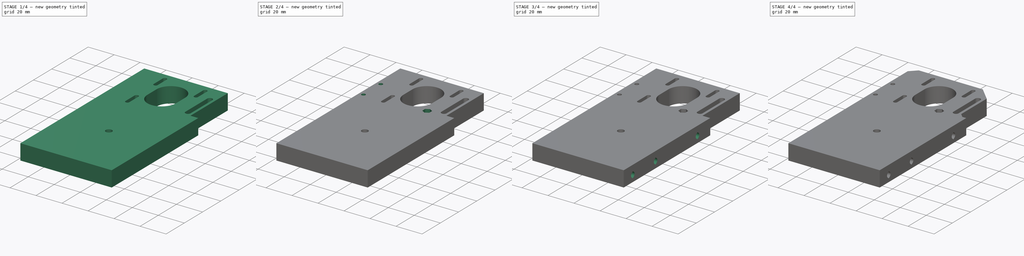
[diagram: build sequence overview — one tinted view per stage of 4, left to right]
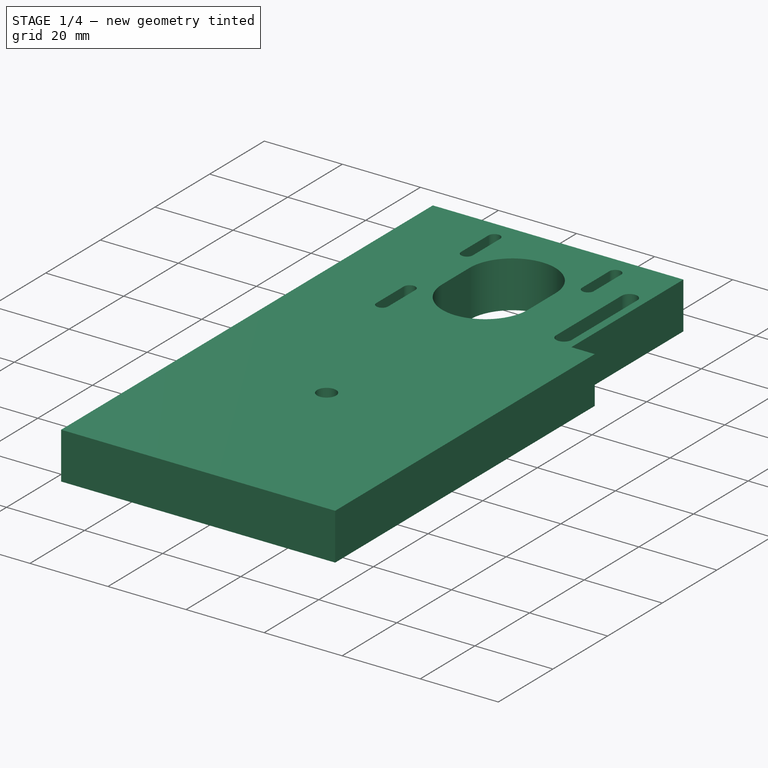
[diagram: stage 1 of 4 — iso view after this stage's code; geometry added in this stage tinted green]
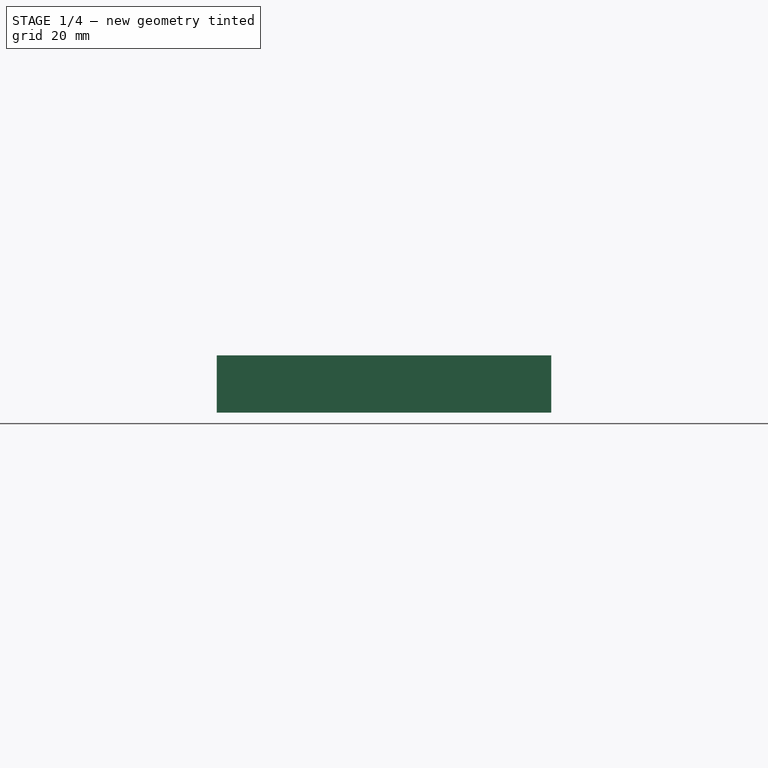
[diagram: stage 1 of 4 — front view after this stage's code; geometry added in this stage tinted green]
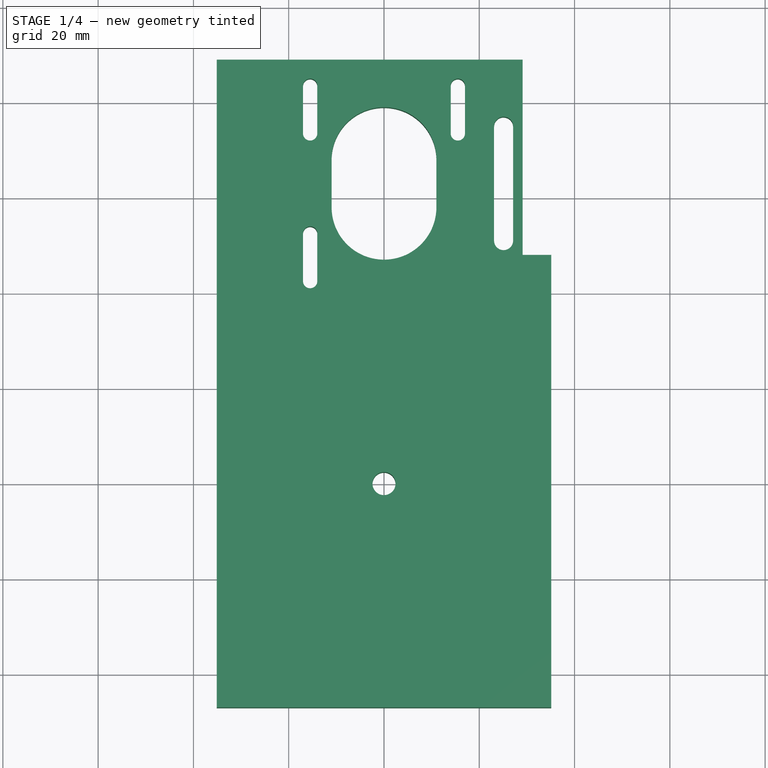
[diagram: stage 1 of 4 — top view after this stage's code; geometry added in this stage tinted green]
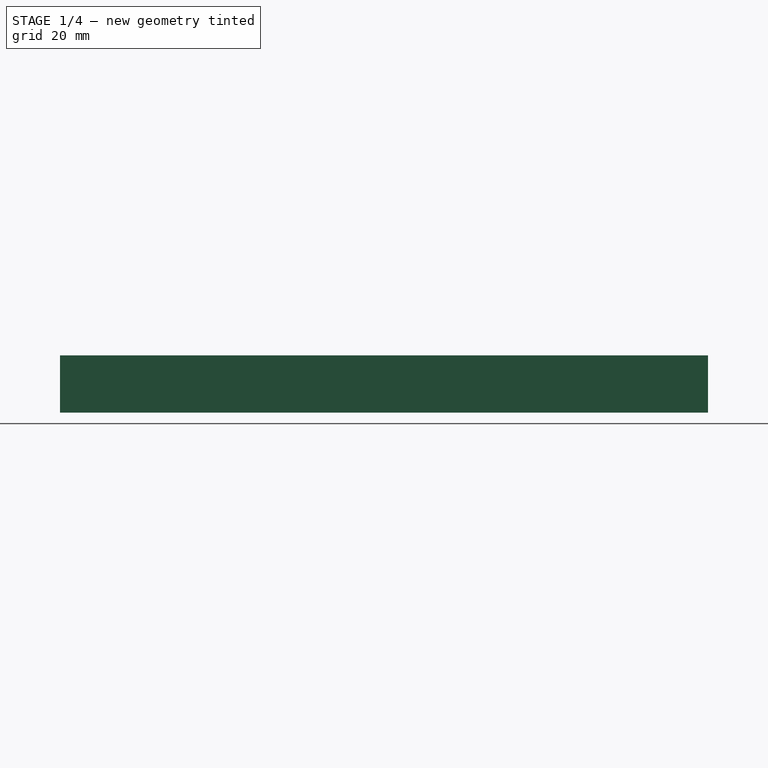
[diagram: stage 1 of 4 — right view after this stage's code; geometry added in this stage tinted green]
FCSTD DOCUMENT  (FreeCAD 0.20R29410 (Git))
Label: #5_MotorsBase
License: All rights reserved
LicenseURL: http://en.wikipedia.org/wiki/All_rights_reserved
objects: Sketcher::SketchObject×7, PartDesign::Pocket×6, PartDesign::Chamfer×3, PartDesign::LinearPattern×2, PartDesign::Pad×1, PartDesign::Body×1
note: 30 computed .brp shape members not serialized (recipe doc carries the construction recipe); baked Part::Feature solids carry a one-line shape summary decoded from their .brp

FEATURE [Sketcher::SketchObject] Sketch
  FullyConstrained = true
  MapMode = 5
  Support = -> [XY_Plane]
  sketch-geometry (7):
    g0: Circle CenterX=0 CenterY=0 CenterZ=0 NormalX=0 NormalY=0 NormalZ=1 AngleXU=0 Radius=2.425
    g1: LineSegment StartX=-35.1 StartY=-47 StartZ=0 EndX=35.1 EndY=-47 EndZ=0
    g2: LineSegment StartX=-35.1 StartY=-47 StartZ=0 EndX=-35.1 EndY=89 EndZ=0
    g3: LineSegment StartX=35.1 StartY=-47 StartZ=0 EndX=35.1 EndY=48 EndZ=0
    g4: LineSegment StartX=35.1 StartY=48 StartZ=0 EndX=29.1 EndY=48 EndZ=0
    g5: LineSegment StartX=29.1 StartY=48 StartZ=0 EndX=29.1 EndY=89 EndZ=0
    g6: LineSegment StartX=29.1 StartY=89 StartZ=0 EndX=-35.1 EndY=89 EndZ=0
  constraints (20):
    c: Coincident(g0,g-1)
    c: Diameter(g0) = 4.85
    c: Distance(g1) = 70.2
    c: Symmetric(g1,g1,g-2)
    c: Distance(g0,g1) = 47
    c: Coincident(g2,g1)
    c: Vertical(g2)
    c: Distance(g2) = 136
    c: Coincident(g3,g1)
    c: Vertical(g3)
    c: Distance(g3) = 95
    c: Coincident(g4,g3)
    c: Horizontal(g4)
    c: Distance(g4) = 6
    c: Coincident(g5,g4)
    c: Vertical(g5)
    c: Distance(g5) = 41
    c: Coincident(g6,g5)
    c: Horizontal(g6)
    c: PointOnObject(g6,g2)
FEATURE [PartDesign::Pad] Pad
  Direction = (0,0,1)
  Length = 12
  Length2 = 10
  Profile = -> Sketch
  ReferenceAxis = -> Sketch [N_Axis]
  Type = 0
FEATURE [Sketcher::SketchObject] Sketch001
  FullyConstrained = true
  MapMode = 5
  Placement = pos=(0,0,12) rot=(0,0,1;0rad)
  Support = -> [Pad]
  sketch-geometry (18):
    g0: ArcOfCircle CenterX=0 CenterY=68 CenterZ=0 NormalX=0 NormalY=0 NormalZ=1 AngleXU=0 Radius=11 StartAngle=1e-16 EndAngle=3.14159
    g1: ArcOfCircle CenterX=0 CenterY=58 CenterZ=0 NormalX=0 NormalY=0 NormalZ=1 AngleXU=0 Radius=11 StartAngle=3.14159 EndAngle=6.28319
    g2: LineSegment StartX=-11 StartY=68 StartZ=0 EndX=-11 EndY=58 EndZ=0
    g3: LineSegment StartX=11 StartY=58 StartZ=0 EndX=11 EndY=68 EndZ=0
    g4: ArcOfCircle CenterX=-15.5 CenterY=83.5 CenterZ=0 NormalX=0 NormalY=0 NormalZ=1 AngleXU=0 Radius=1.5 StartAngle=-9e-16 EndAngle=3.14159
    g5: ArcOfCircle CenterX=-15.5 CenterY=73.5 CenterZ=0 NormalX=0 NormalY=0 NormalZ=1 AngleXU=0 Radius=1.5 StartAngle=3.14159 EndAngle=6.28319
    g6: LineSegment StartX=-17 StartY=83.5 StartZ=0 EndX=-17 EndY=73.5 EndZ=0
    g7: LineSegment StartX=-14 StartY=73.5 StartZ=0 EndX=-14 EndY=83.5 EndZ=0
    g8: ArcOfCircle CenterX=-15.5 CenterY=52.5 CenterZ=0 NormalX=0 NormalY=0 NormalZ=1 AngleXU=0 Radius=1.5 StartAngle=-9e-16 EndAngle=3.14159
    g9: ArcOfCircle CenterX=-15.5 CenterY=42.5 CenterZ=0 NormalX=0 NormalY=0 NormalZ=1 AngleXU=0 Radius=1.5 StartAngle=3.14159 EndAngle=6.28319
    g10: LineSegment StartX=-17 StartY=52.5 StartZ=0 EndX=-17 EndY=42.5 EndZ=0
    g11: LineSegment StartX=-14 StartY=42.5 StartZ=0 EndX=-14 EndY=52.5 EndZ=0
    g12: ArcOfCircle CenterX=15.5 CenterY=83.5 CenterZ=0 NormalX=0 NormalY=0 NormalZ=1 AngleXU=0 Radius=1.5 StartAngle=4.1e-15 EndAngle=3.14159
    g13: ArcOfCircle CenterX=15.5 CenterY=73.5 CenterZ=0 NormalX=0 NormalY=0 NormalZ=1 AngleXU=0 Radius=1.5 StartAngle=3.14159 EndAngle=6.28319
    g14: LineSegment StartX=14 StartY=83.5 StartZ=0 EndX=14 EndY=73.5 EndZ=0
    g15: LineSegment StartX=17 StartY=73.5 StartZ=0 EndX=17 EndY=83.5 EndZ=0
    g16: LineSegment StartX=-15.5 StartY=42.5 StartZ=0 EndX=0 EndY=58 EndZ=0
    g17: LineSegment StartX=0 StartY=58 StartZ=0 EndX=-15.5 EndY=73.5 EndZ=0
  constraints (43):
    c: Tangent(g0,g2) = -1.5708
    c: Tangent(g2,g1) = -1.5708
    c: Tangent(g1,g3) = -1.5708
    c: Tangent(g3,g0) = -1.5708
    c: Equal(g0,g1)
    c: PointOnObject(g0,g-2)
    c: PointOnObject(g1,g-2)
    c: Diameter(g1) = 22
    c: Distance(g1,g0) = 10
    c: Distance(g1,g-1) = 58
    c: Tangent(g4,g6) = -1.5708
    c: Tangent(g6,g5) = -1.5708
    c: Tangent(g5,g7) = -1.5708
    c: Tangent(g7,g4) = -1.5708
    c: Equal(g4,g5)
    c: Vertical(g6)
    c: Tangent(g8,g10) = -1.5708
    c: Tangent(g10,g9) = -1.5708
    c: Tangent(g9,g11) = -1.5708
    c: Tangent(g11,g8) = -1.5708
    c: Equal(g8,g9)
    c: Vertical(g10)
    c: Tangent(g12,g14) = -1.5708
    c: Tangent(g14,g13) = -1.5708
    c: Tangent(g13,g15) = -1.5708
    c: Tangent(g15,g12) = -1.5708
    c: Equal(g12,g13)
    c: Vertical(g14)
    c: Diameter(g13) = 3
    c: Diameter(g9) = 3
    c: Diameter(g5) = 3
    c: Distance(g8,g9) = 10
    c: Distance(g4,g5) = 10
    c: Distance(g12,g13) = 10
    c: Symmetric(g4,g12,g-2)
    c: Distance(g4,g12) = 31
    c: Coincident(g16,g9)
    c: Coincident(g16,g1)
    c: Coincident(g17,g1)
    c: Coincident(g17,g5)
    c: Equal(g17,g16)
    c: DistanceX(g9,g13) = 31
    c: Distance(g8,g4) = 31
FEATURE [PartDesign::Pocket] Pocket
  BaseFeature = -> Pad
  Direction = (0,0,-1)
  Length = 20
  Length2 = 5
  Profile = -> Sketch001
  ReferenceAxis = -> Sketch001 [N_Axis]
  Type = 0
FEATURE [Sketcher::SketchObject] Sketch002
  ExternalGeometry = -> [Pocket]
  FullyConstrained = true
  MapMode = 5
  Placement = pos=(0,0,12) rot=(0,0,1;0rad)
  Support = -> [Pocket]
  sketch-geometry (4):
    g0: ArcOfCircle CenterX=25.1 CenterY=75 CenterZ=0 NormalX=0 NormalY=0 NormalZ=1 AngleXU=0 Radius=2 StartAngle=0 EndAngle=3.14159
    g1: ArcOfCircle CenterX=25.1 CenterY=51 CenterZ=0 NormalX=0 NormalY=0 NormalZ=1 AngleXU=0 Radius=2 StartAngle=3.14159 EndAngle=6.28319
    g2: LineSegment StartX=23.1 StartY=75 StartZ=0 EndX=23.1 EndY=51 EndZ=0
    g3: LineSegment StartX=27.1 StartY=51 StartZ=0 EndX=27.1 EndY=75 EndZ=0
  constraints (10):
    c: Tangent(g0,g2) = -1.5708
    c: Tangent(g2,g1) = -1.5708
    c: Tangent(g1,g3) = -1.5708
    c: Tangent(g3,g0) = -1.5708
    c: Equal(g0,g1)
    c: Vertical(g2)
    c: Diameter(g1) = 4
    c: DistanceY(g1,g0) = 24
    c: Distance(g0,g-3) = 2
    c: DistanceY(g0,g-3) = 14
FEATURE [PartDesign::Pocket] Pocket001
  BaseFeature = -> Pocket
  Direction = (0,0,-1)
  Length = 20
  Length2 = 5
  Profile = -> Sketch002
  ReferenceAxis = -> Sketch002 [N_Axis]
  Type = 0
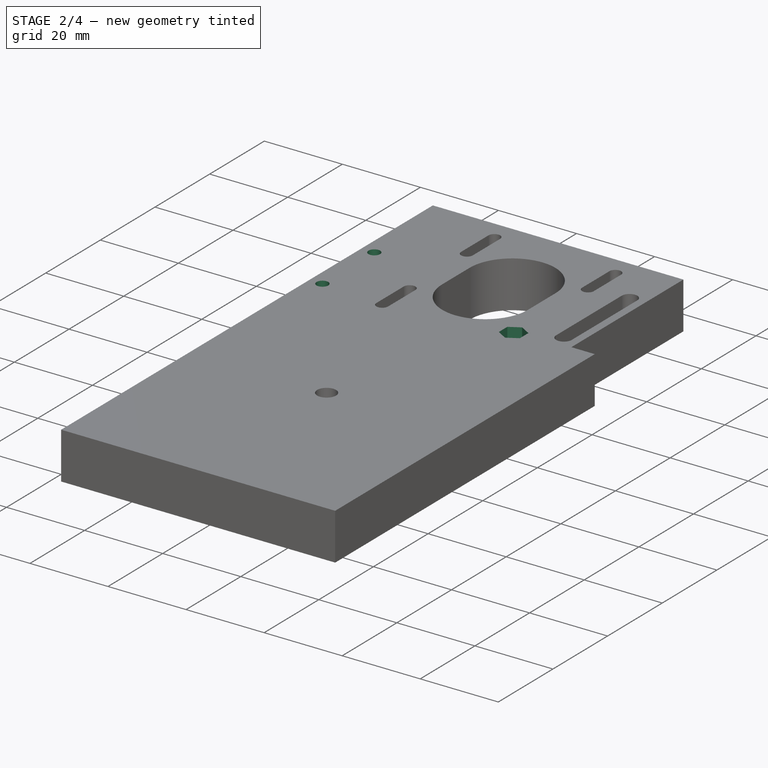
[diagram: stage 2 of 4 — iso view after this stage's code; geometry added in this stage tinted green]
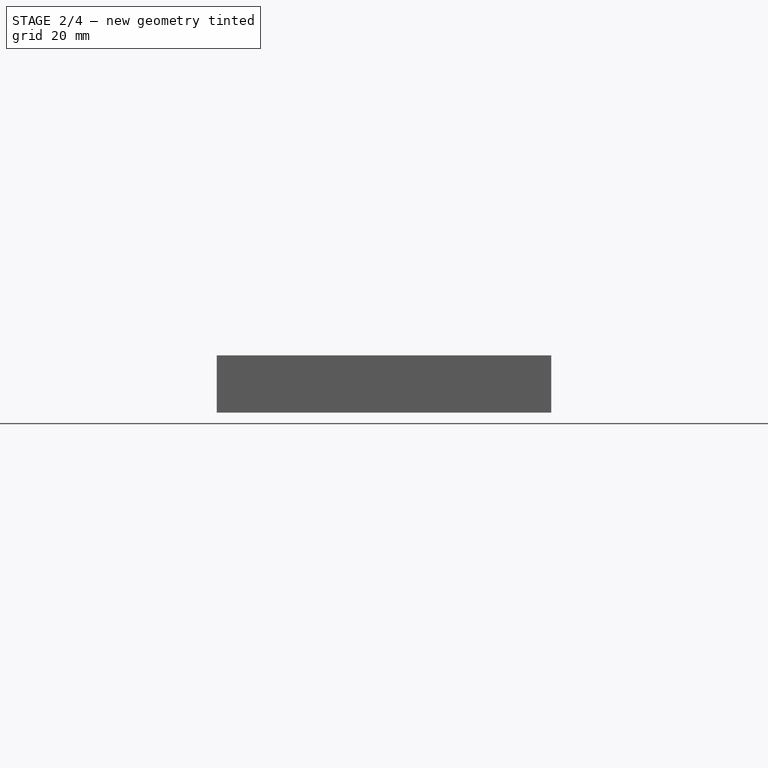
[diagram: stage 2 of 4 — front view after this stage's code; geometry added in this stage tinted green]
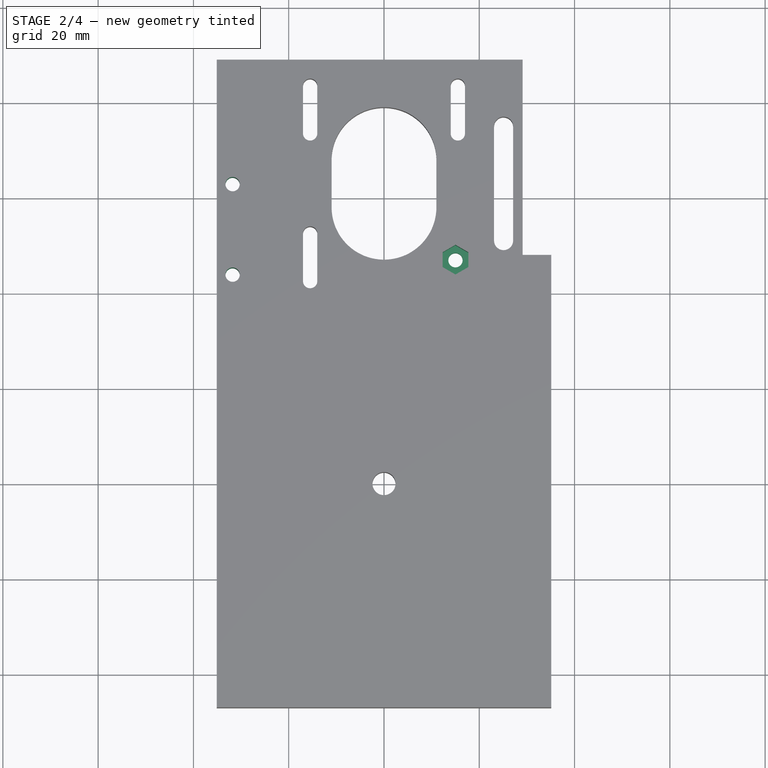
[diagram: stage 2 of 4 — top view after this stage's code; geometry added in this stage tinted green]
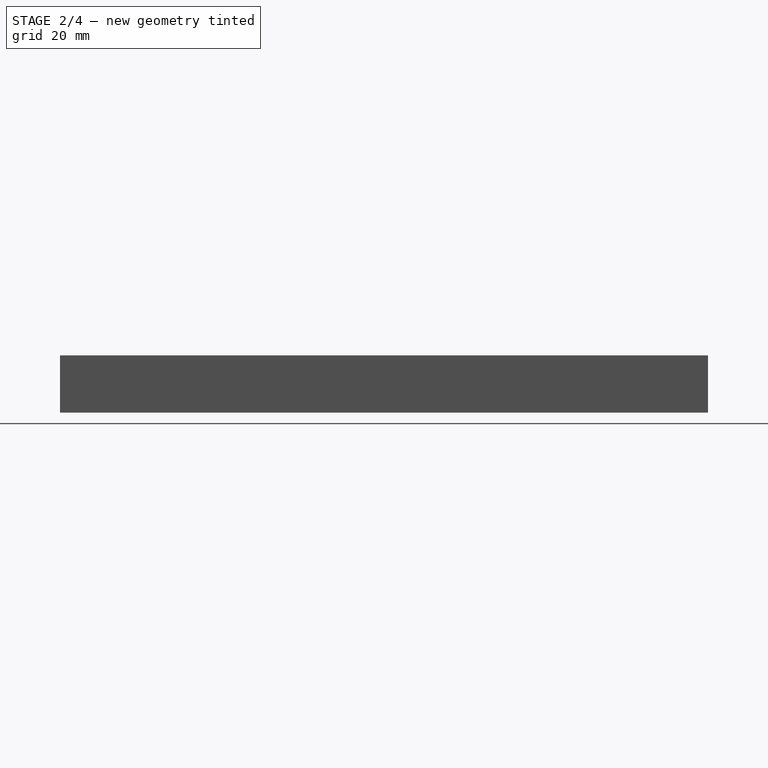
[diagram: stage 2 of 4 — right view after this stage's code; geometry added in this stage tinted green]
FEATURE [Sketcher::SketchObject] Sketch003
  ExternalGeometry = -> [Pocket001]
  FullyConstrained = true
  MapMode = 5
  Placement = pos=(0,0,12) rot=(0,0,1;0rad)
  Support = -> [Pocket001]
  sketch-geometry (2):
    g0: Circle CenterX=-31.78 CenterY=62.85 CenterZ=0 NormalX=0 NormalY=0 NormalZ=1 AngleXU=0 Radius=1.5
    g1: Circle CenterX=-31.78 CenterY=43.85 CenterZ=0 NormalX=0 NormalY=0 NormalZ=1 AngleXU=0 Radius=1.5
  constraints (6):
    c: Diameter(g1) = 3
    c: Diameter(g0) = 3
    c: DistanceY(g1,g0) = 19
    c: DistanceY(g0,g-3) = 26.15
    c: DistanceX(g-3,g0) = 3.32
    c: DistanceX(g-3,g1) = 3.32
FEATURE [PartDesign::Pocket] Pocket002
  BaseFeature = -> Pocket001
  Direction = (0,0,-1)
  Length = 20
  Length2 = 5
  Profile = -> Sketch003
  ReferenceAxis = -> Sketch003 [N_Axis]
  Type = 0
FEATURE [Sketcher::SketchObject] Sketch004
  ExternalGeometry = -> [Pocket002]
  FullyConstrained = true
  MapMode = 5
  Placement = pos=(0,0,12) rot=(0,0,1;0rad)
  Support = -> [Pocket002]
  sketch-geometry (1):
    g0: Circle CenterX=14.9991 CenterY=47.0047 CenterZ=0 NormalX=0 NormalY=0 NormalZ=1 AngleXU=0 Radius=1.5
  constraints (3):
    c: Diameter(g0) = 3
    c: Distance(g0,g-4) = 30.83
    c: Distance(g0,g-3) = 26.5
FEATURE [PartDesign::Pocket] Pocket003
  BaseFeature = -> Pocket002
  Direction = (0,0,-1)
  Length = 20
  Length2 = 5
  Profile = -> Sketch004
  ReferenceAxis = -> Sketch004 [N_Axis]
  Type = 0
FEATURE [Sketcher::SketchObject] Sketch005
  ExternalGeometry = -> [Pocket003]
  FullyConstrained = true
  MapMode = 5
  Placement = pos=(0,0,12) rot=(0,0,1;0rad)
  Support = -> [Pocket003]
  sketch-geometry (7):
    g0: LineSegment StartX=14.9991 StartY=43.887 StartZ=0 EndX=17.6991 EndY=45.4459 EndZ=0
    g1: LineSegment StartX=17.6991 StartY=45.4459 StartZ=0 EndX=17.6991 EndY=48.5636 EndZ=0
    g2: LineSegment StartX=17.6991 StartY=48.5636 StartZ=0 EndX=14.9991 EndY=50.1224 EndZ=0
    g3: LineSegment StartX=14.9991 StartY=50.1224 StartZ=0 EndX=12.2991 EndY=48.5636 EndZ=0
    g4: LineSegment StartX=12.2991 StartY=48.5636 StartZ=0 EndX=12.2991 EndY=45.4459 EndZ=0
    g5: LineSegment StartX=12.2991 StartY=45.4459 StartZ=0 EndX=14.9991 EndY=43.887 EndZ=0
    g6: Circle CenterX=14.9991 CenterY=47.0047 CenterZ=0 NormalX=0 NormalY=0 NormalZ=1 AngleXU=0 Radius=3.11769
  constraints (16):
    c: Coincident(g0,g1)
    c: Coincident(g1,g2)
    c: Coincident(g2,g3)
    c: Coincident(g3,g4)
    c: Coincident(g4,g5)
    c: Coincident(g5,g0)
    c: Equal(g0, g1-g5) x5
    c: PointOnObject(g0,g6)
    c: PointOnObject(g1,g6)
    c: PointOnObject(g2,g6)
    c: PointOnObject(g3,g6)
    c: PointOnObject(g4,g6)
    c: PointOnObject(g5,g6)
    c: Coincident(g6,g-3)
    c: Parallel(g1,g-2)
    c: DistanceX(g4,g0) = 5.4
FEATURE [PartDesign::Pocket] Pocket004
  BaseFeature = -> Pocket003
  Direction = (0,0,-1)
  Length = 7
  Length2 = 5
  Profile = -> Sketch005
  ReferenceAxis = -> Sketch005 [N_Axis]
  Type = 0
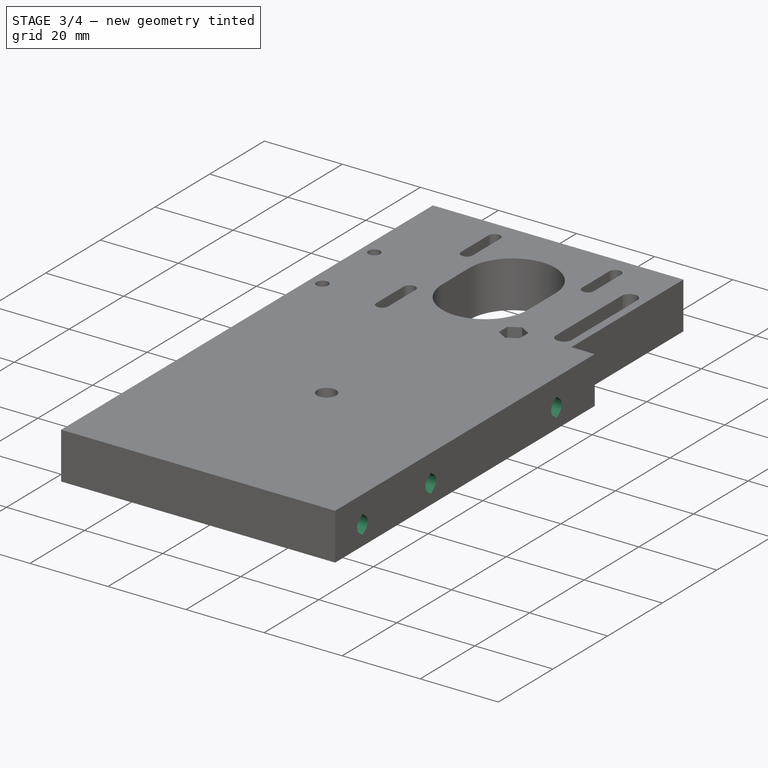
[diagram: stage 3 of 4 — iso view after this stage's code; geometry added in this stage tinted green]
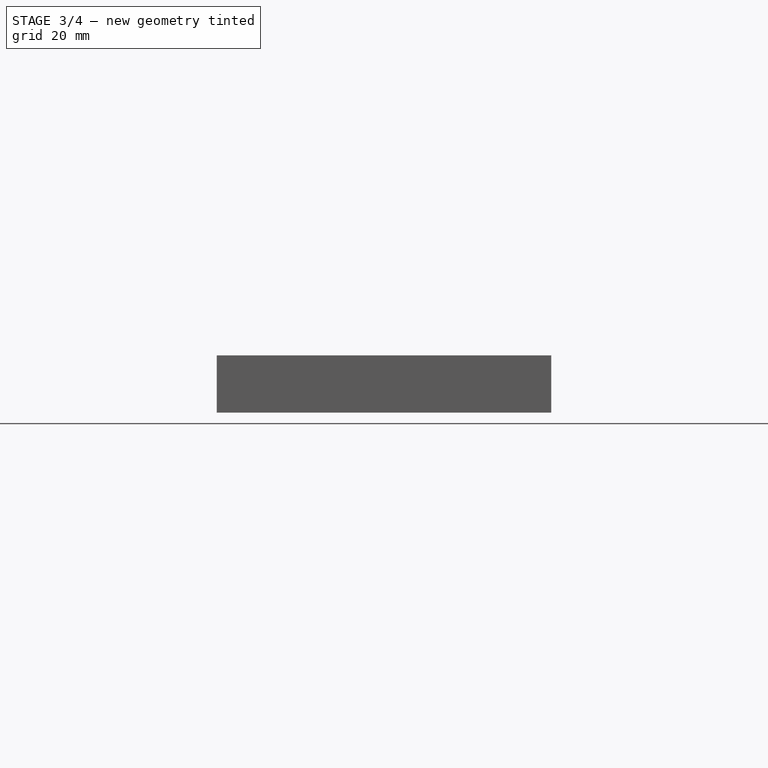
[diagram: stage 3 of 4 — front view after this stage's code; geometry added in this stage tinted green]
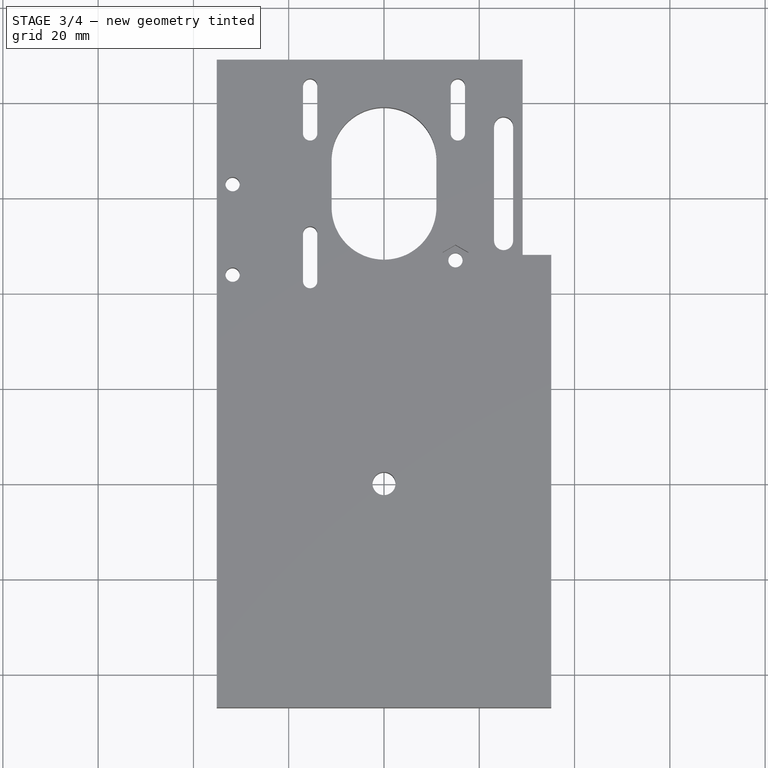
[diagram: stage 3 of 4 — top view after this stage's code; geometry added in this stage tinted green]
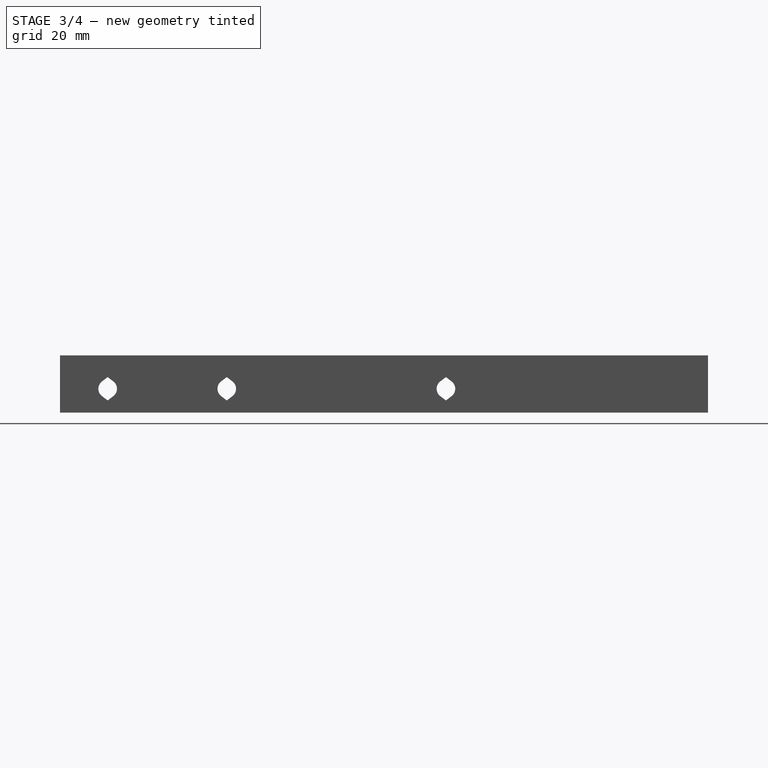
[diagram: stage 3 of 4 — right view after this stage's code; geometry added in this stage tinted green]
FEATURE [Sketcher::SketchObject] Sketch006
  ExternalGeometry = -> [Pocket004]
  FullyConstrained = true
  MapMode = 5
  Placement = pos=(35.1,0,0) rot=(0.57735,0.57735,0.57735;2.0944rad)
  Support = -> [Pocket004]
  sketch-geometry (7):
    g0: ArcOfCircle CenterX=-37 CenterY=5 CenterZ=0 NormalX=0 NormalY=0 NormalZ=1 AngleXU=0 Radius=1.95 StartAngle=2.22107 EndAngle=4.06212
    g1: LineSegment StartX=-37 StartY=7.45 StartZ=0 EndX=-35.8195 EndY=6.55204 EndZ=0
    g2: LineSegment StartX=-37 StartY=7.45 StartZ=0 EndX=-38.1805 EndY=6.55204 EndZ=0
    g3: LineSegment StartX=-38.1805 StartY=3.44796 StartZ=0 EndX=-37 EndY=2.55 EndZ=0
    g4: LineSegment StartX=-37 StartY=2.55 StartZ=0 EndX=-35.8195 EndY=3.44796 EndZ=0
    g5: LineSegment StartX=-37 StartY=7.45 StartZ=0 EndX=-37 EndY=2.55 EndZ=0
    g6: ArcOfCircle CenterX=-37 CenterY=5 CenterZ=0 NormalX=0 NormalY=0 NormalZ=1 AngleXU=0 Radius=1.95 StartAngle=5.36266 EndAngle=7.20371
  constraints (17):
    c: Diameter(g0) = 3.9
    c: Coincident(g2,g1)
    c: Distance(g0,g1) = 2.45
    c: Coincident(g4,g3)
    c: Symmetric(g1,g3,g0)
    c: Coincident(g5,g1)
    c: Coincident(g5,g3)
    c: Vertical(g5)
    c: DistanceY(g0,g-3) = 7
    c: DistanceX(g-3,g0) = 10
    c: Coincident(g6,g1) = 1.5708
    c: Tangent(g0,g2) = -1.5708
    c: Equal(g0,g6)
    c: Tangent(g6,g4) = -1.5708
    c: Coincident(g0,g6)
    c: Tangent(g0,g3) = -1.5708
    c: Equal(g2,g1)
FEATURE [PartDesign::Pocket] Pocket005
  BaseFeature = -> Pocket004
  Direction = (-1,0,0)
  Length = 100
  Length2 = 5
  Profile = -> Sketch006
  ReferenceAxis = -> Sketch006 [N_Axis]
  Type = 0
FEATURE [PartDesign::LinearPattern] LinearPattern
  BaseFeature = -> Pocket005
  Direction = -> Sketch006 [H_Axis]
  Length = 25
  Occurrences = 2
  Originals = -> [Pocket005]
FEATURE [PartDesign::LinearPattern] LinearPattern001
  BaseFeature = -> LinearPattern
  Direction = -> Sketch006 [H_Axis]
  Length = 71
  Occurrences = 2
  Originals = -> [Pocket005]
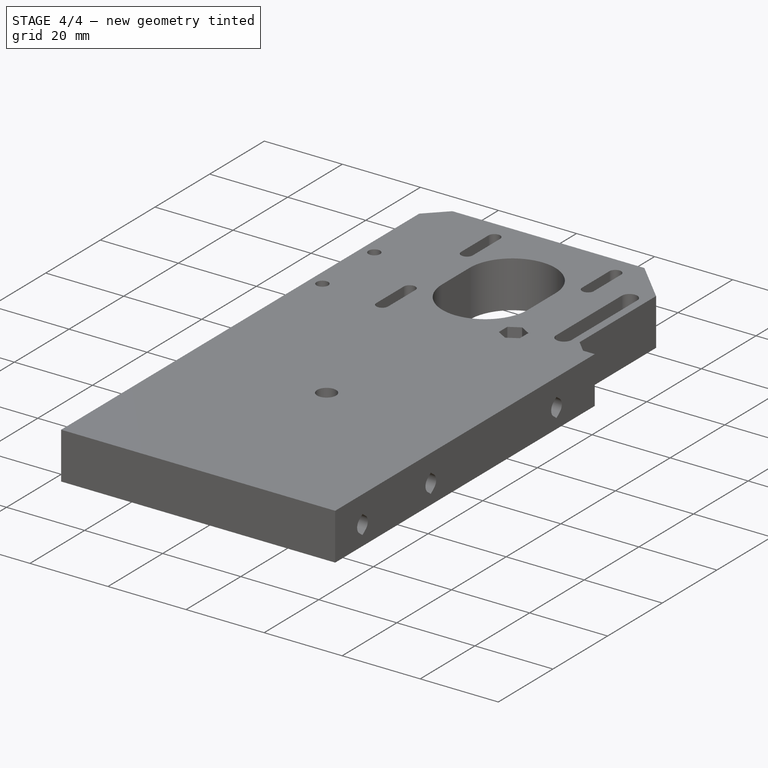
[diagram: stage 4 of 4 — iso view after this stage's code; geometry added in this stage tinted green]
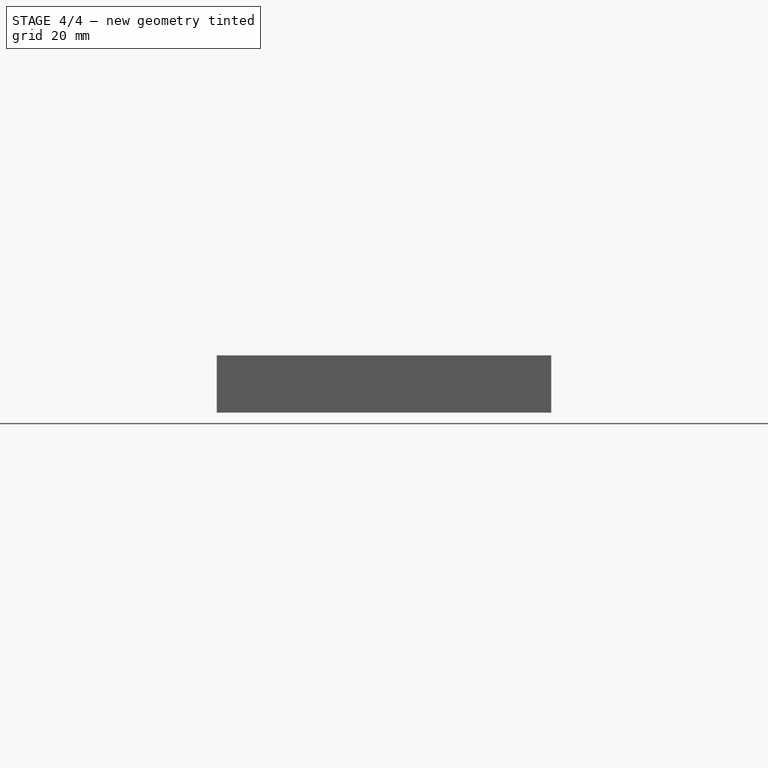
[diagram: stage 4 of 4 — front view after this stage's code; geometry added in this stage tinted green]
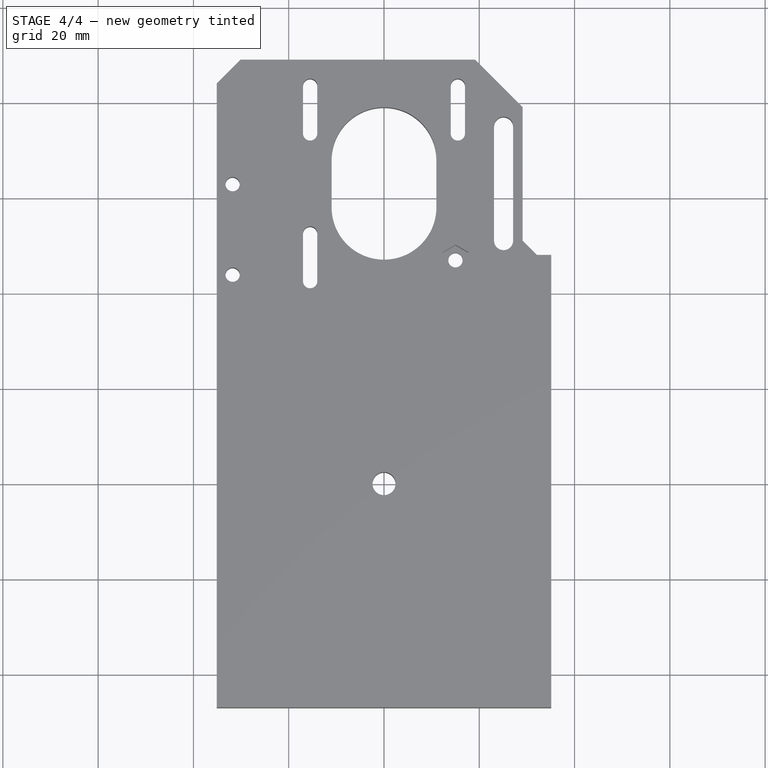
[diagram: stage 4 of 4 — top view after this stage's code; geometry added in this stage tinted green]
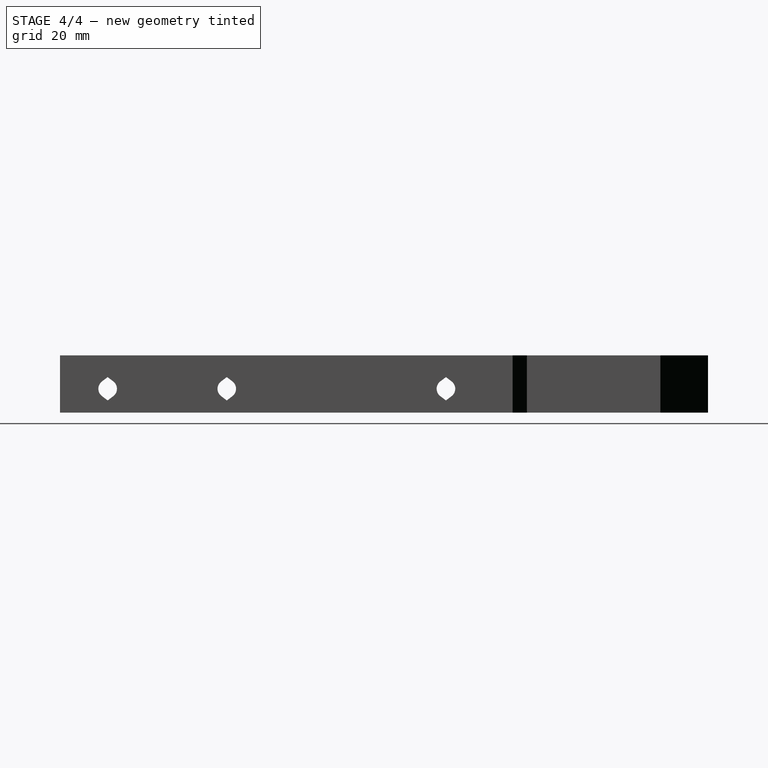
[diagram: stage 4 of 4 — right view after this stage's code; geometry added in this stage tinted green]
FEATURE [PartDesign::Chamfer] Chamfer
  Angle = 45
  Base = -> LinearPattern001 [Edge125]
  BaseFeature = -> LinearPattern001
  ChamferType = 0
  FlipDirection = false
  Size = 3
  Size2 = 1
  SupportTransform = false
  UseAllEdges = false
FEATURE [PartDesign::Chamfer] Chamfer001
  Angle = 45
  Base = -> Chamfer [Edge57]
  BaseFeature = -> Chamfer
  ChamferType = 0
  FlipDirection = false
  Size = 10
  Size2 = 1
  SupportTransform = false
  UseAllEdges = false
FEATURE [PartDesign::Chamfer] Chamfer002
  Angle = 45
  Base = -> Chamfer001 [Edge40]
  BaseFeature = -> Chamfer001
  ChamferType = 0
  FlipDirection = false
  Size = 5
  Size2 = 1
  SupportTransform = false
  UseAllEdges = false
FEATURE [PartDesign::Body] Body
  Group = -> [Sketch,Pad,Sketch001,Pocket,Sketch002,Pocket001,Sketch003,Pocket002,Sketch004,Pocket003,Sketch005,Pocket004,Sketch006,Pocket005,LinearPattern,LinearPattern001,Chamfer,Chamfer001,Chamfer002]
  Origin = -> Origin
  Tip = -> Chamfer002
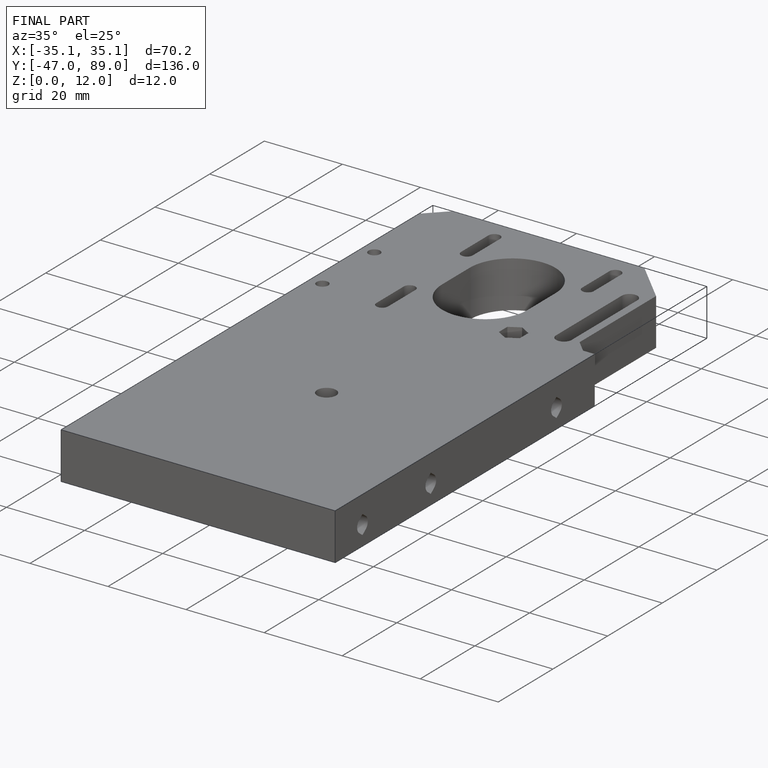
[diagram: finished part — iso view with bounding-box wireframe]
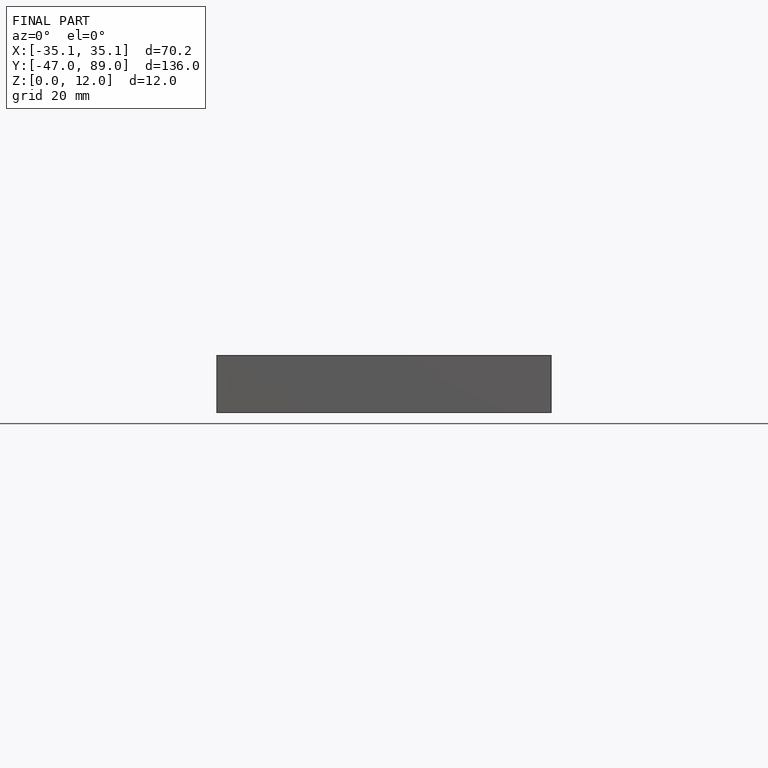
[diagram: finished part — front view with bounding-box wireframe]
